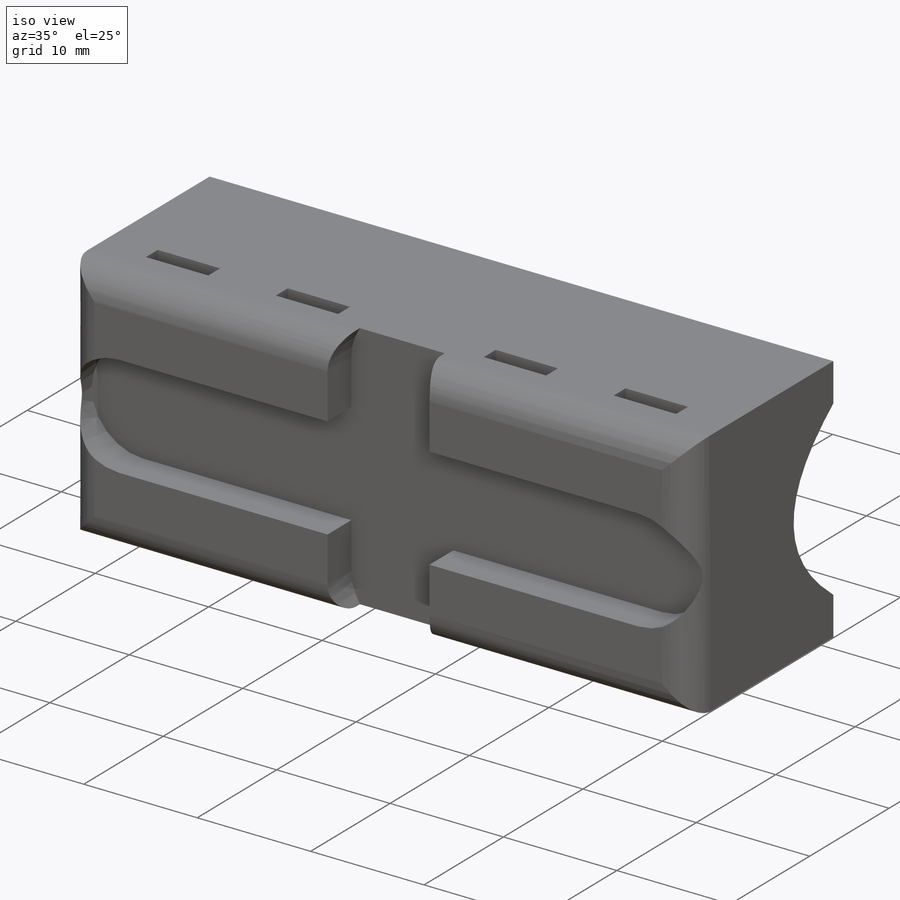
[diagram: iso view]
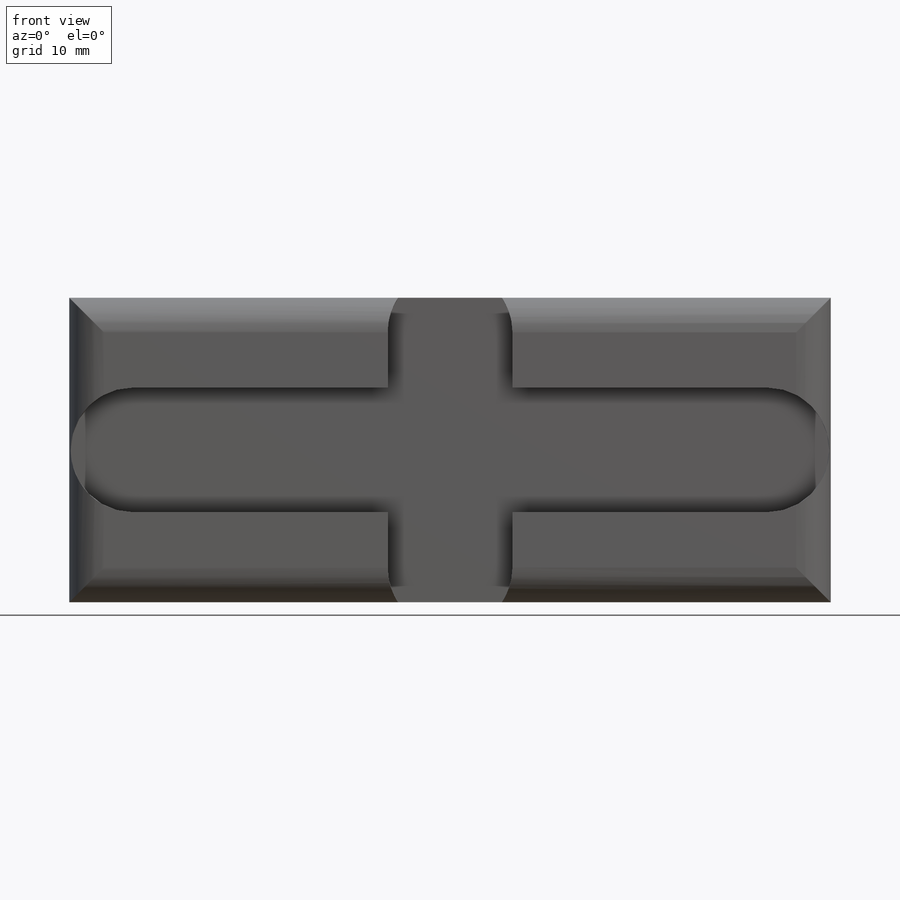
[diagram: front view]
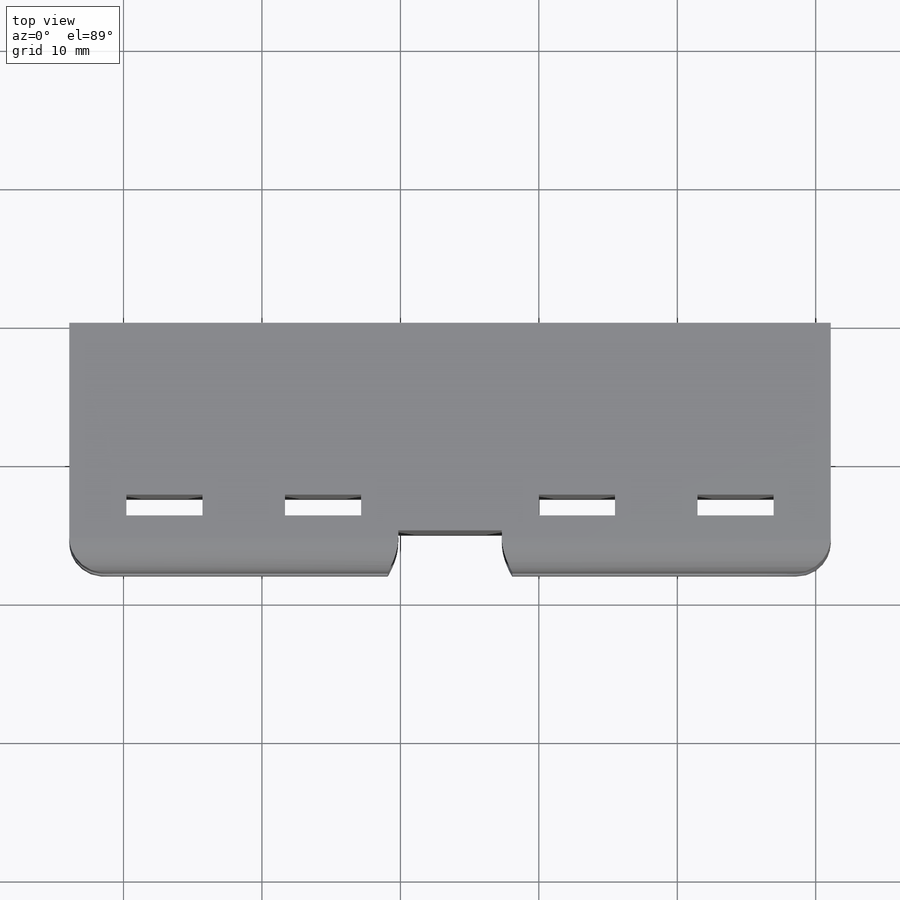
[diagram: top view]
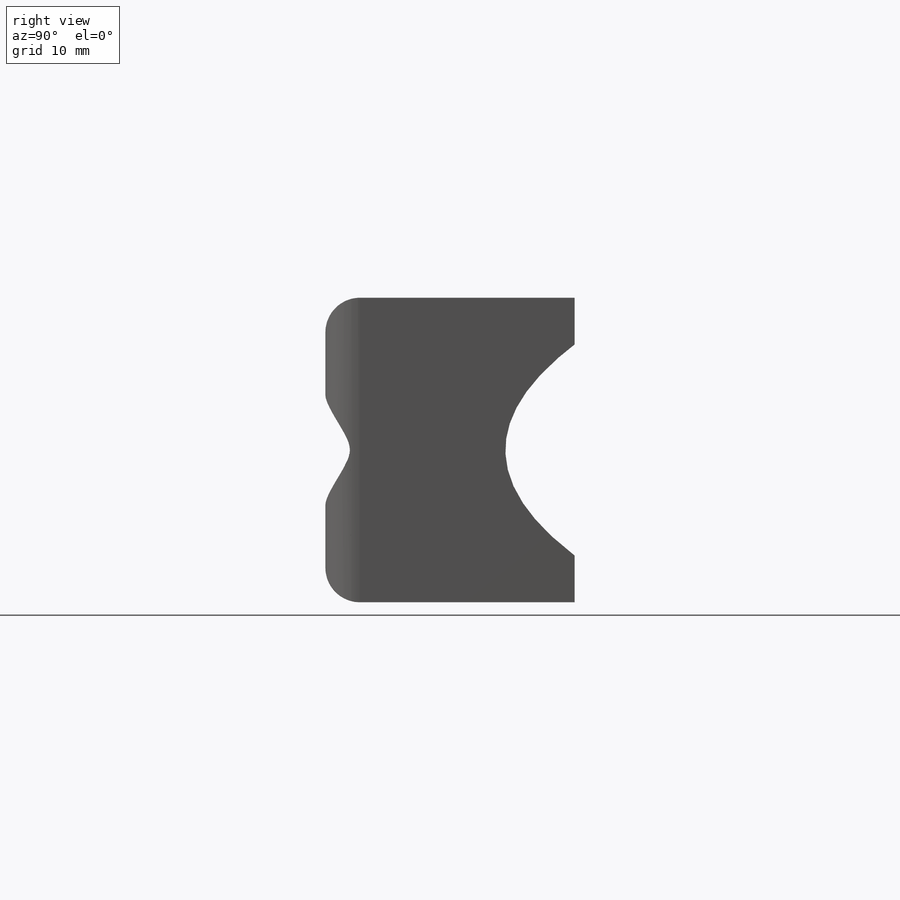
[diagram: right view]
SOLIDWORKS PART (.sldprt)
format: sldprt  version: not decoded by parser v0  size: 273,408 bytes
history: native  units: mm
features: sketch x5, cut_extrude x4, material x1, extrude x1, fillet x1 (+11 scaffold rows collapsed)
feature tree (23):
  scaffold x11  (default folders/planes/origin — collapsed)
  material  "Material <not specified>"
  sketch  "Sketch1"  dims[D1=55.0mm D2=22.0mm]
  extrude  "Boss-Extrude1"  Depth=18mm
  sketch  "Sketch3"
  cut_extrude  "Cut-Extrude2"  [1 undecoded]
  sketch  "Sketch5"  dims[D1=2.5mm D2=2.5mm D3=2.5mm D4=2.5mm]
  cut_extrude  "Cut-Extrude3"  Depth=10mm
  fillet  "Fillet1"  Radius=2.5mm
  sketch  "Sketch7"  dims[D3=12.0mm D1=9.0mm D2=9.0mm]
  cut_extrude  "Cut-Extrude4"  Depth=3mm
  sketch  "Sketch8"  dims[D1=~9.166667mm D2=6.875mm D3=1.5mm D4=5.5mm D5=1.5mm D6=5.5mm D7=4.0mm]
  cut_extrude  "Cut-Extrude5"  Depth=32mm
decode coverage: 9 of 11 modeling features carry decoded parameters
note: ~ marks probable driven/reference dimensions
note: 1 parameter value undecoded
note: suppression state not decoded; provenance and decode notes live in map.json
